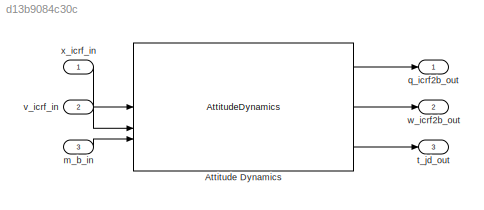
MODEL slx_d13b9084c30c
KIND model
CONFIG AbsTol = auto
CONFIG EnableMultiTasking = off
CONFIG FixedStep = 0.001
CONFIG InitFcn = load('attitude_dynamics_initial.mat')
CONFIG MaxStep = auto
CONFIG MinStep = auto
CONFIG RelTol = 1e-3
CONFIG SampleTimeConstraint = Unconstrained
CONFIG SolverName = FixedStepAuto
CONFIG StartTime = 0.0
CONFIG StopTime = 1000.0
BLOCK [AttitudeDynamics] Attitude Dynamics
BLOCK [Inport] m_b_in
  Port = 3
  PortDimensions = 3
BLOCK [Outport] q_icrf2b_out
  PortDimensions = 4
BLOCK [Outport] t_jd_out
  Port = 3
  PortDimensions = 1
BLOCK [Inport] v_icrf_in
  Port = 2
  PortDimensions = 3
BLOCK [Outport] w_icrf2b_out
  Port = 2
  PortDimensions = 3
BLOCK [Inport] x_icrf_in
  PortDimensions = 3
LINE Attitude Dynamics:1 -> q_icrf2b_out:1
LINE Attitude Dynamics:2 -> w_icrf2b_out:1
LINE Attitude Dynamics:3 -> t_jd_out:1
LINE m_b_in:1 -> Attitude Dynamics:3
LINE v_icrf_in:1 -> Attitude Dynamics:2
LINE x_icrf_in:1 -> Attitude Dynamics:1
